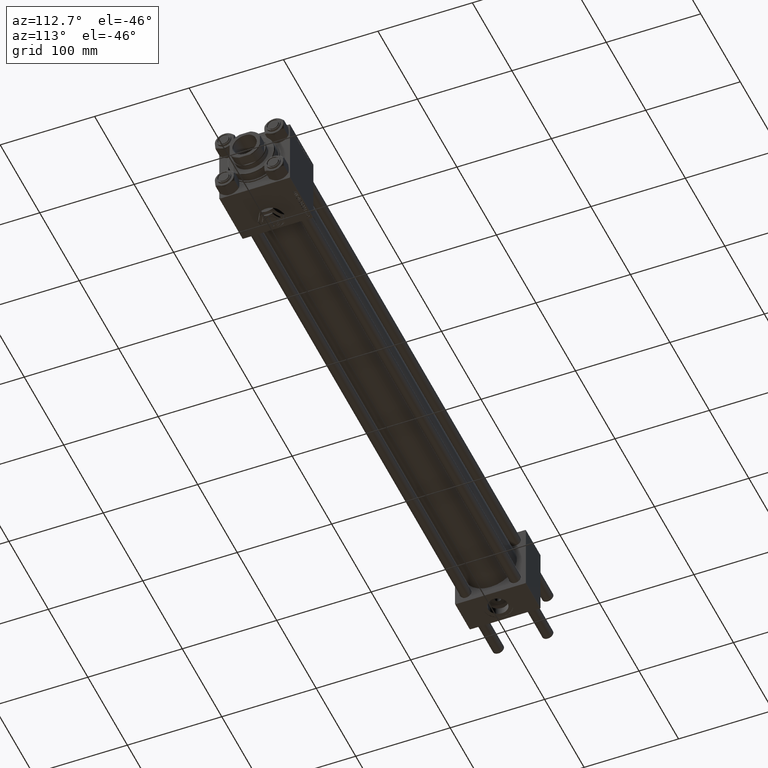
[diagram: clean part render]
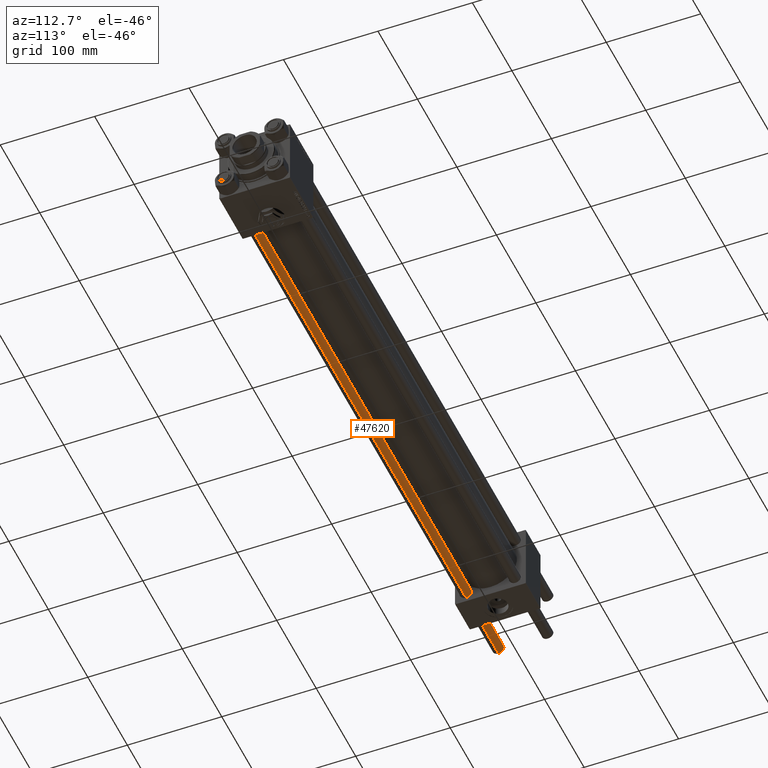
[diagram: same view with one face highlighted and labeled with its STEP entity id]
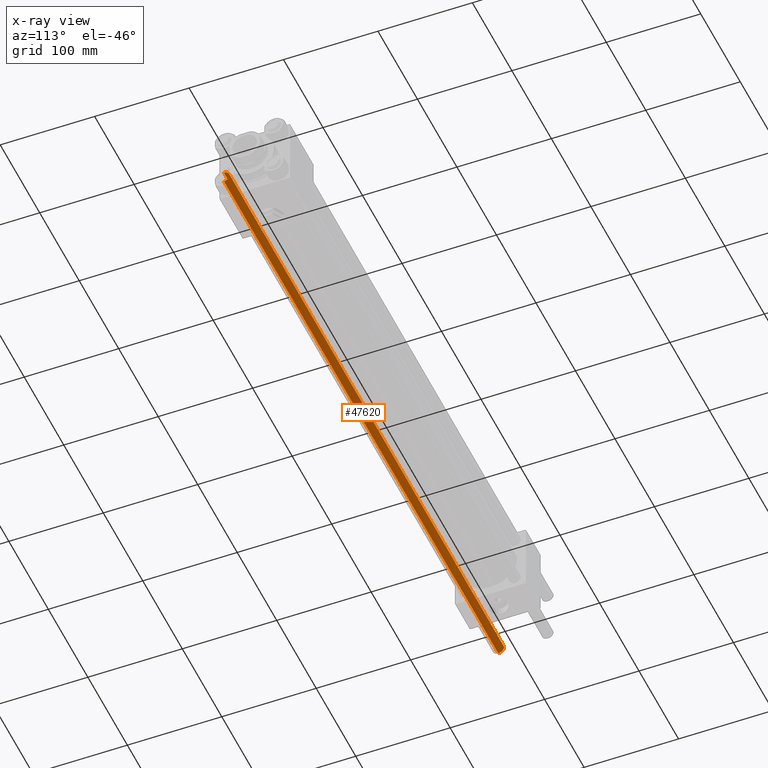
[diagram: x-ray of the same camera — body ghosted, the highlighted face saturated]
A machine part, auxiliary view. The second image highlights one B-rep face of the part: STEP entity #47620.
The next image is the same camera in x-ray: the body ghosted, the highlighted face saturated — about 0% of this face is hidden behind the body in this view.
In plain terms, the highlighted cylindrical surface (edge-blend (fillet) strip) has radius 6 mm, axis along (-1, 0, 0).
Its self-contained STEP definition (entity closure, byte-faithful):
#775 = CIRCLE ( 'NONE', #14104, 6.000000000000000888 ) ;
#5515 = VECTOR ( 'NONE', #46172, 1000.000000000000000 ) ;
#5815 = VERTEX_POINT ( 'NONE', #26380 ) ;
#9101 = CIRCLE ( 'NONE', #45038, 6.000000000000000888 ) ;
#9403 = FACE_OUTER_BOUND ( 'NONE', #12591, .T. ) ;
#10398 = CARTESIAN_POINT ( 'NONE',  ( -6.000000000000000888, 0.000000000000000000, 0.5000000000001669775 ) ) ;
#11100 = CARTESIAN_POINT ( 'NONE',  ( -6.000000000000000888, 0.000000000000000000, 696.0000000000000000 ) ) ;
#11347 = ORIENTED_EDGE ( 'NONE', *, *, #28331, .T. ) ;
#11668 = ORIENTED_EDGE ( 'NONE', *, *, #20585, .T. ) ;
#12591 = EDGE_LOOP ( 'NONE', ( #38704, #29180, #11668, #11347 ) ) ;
#13583 = CARTESIAN_POINT ( 'NONE',  ( 0.000000000000000000, 0.000000000000000000, 696.0000000000000000 ) ) ;
#13980 = DIRECTION ( 'NONE',  ( 1.000000000000000000, 0.000000000000000000, 0.000000000000000000 ) ) ;
#14104 = AXIS2_PLACEMENT_3D ( 'NONE', #33648, #46459, #38350 ) ;
#15994 = DIRECTION ( 'NONE',  ( -0.000000000000000000, -0.000000000000000000, -1.000000000000000000 ) ) ;
#16108 = AXIS2_PLACEMENT_3D ( 'NONE', #13583, #29559, #37664 ) ;
#17391 = VERTEX_POINT ( 'NONE', #37391 ) ;
#20585 = EDGE_CURVE ( 'NONE', #5815, #40368, #50632, .T. ) ;
#23718 = VECTOR ( 'NONE', #15994, 1000.000000000000000 ) ;
#24105 = LINE ( 'NONE', #47942, #23718 ) ;
#26380 = CARTESIAN_POINT ( 'NONE',  ( -6.000000000000000888, 0.000000000000000000, 695.5000000000000000 ) ) ;
#28331 = EDGE_CURVE ( 'NONE', #40368, #17391, #775, .T. ) ;
#29180 = ORIENTED_EDGE ( 'NONE', *, *, #35450, .T. ) ;
#29559 = DIRECTION ( 'NONE',  ( -0.000000000000000000, -0.000000000000000000, -1.000000000000000000 ) ) ;
#33482 = CYLINDRICAL_SURFACE ( 'NONE', #16108, 6.000000000000000888 ) ;
#33648 = CARTESIAN_POINT ( 'NONE',  ( 0.000000000000000000, 0.000000000000000000, 0.5000000000001669775 ) ) ;
#33738 = CARTESIAN_POINT ( 'NONE',  ( 6.000000000000000888, 7.347880794884120722E-16, 695.5000000000000000 ) ) ;
#35450 = EDGE_CURVE ( 'NONE', #42823, #5815, #9101, .T. ) ;
#37391 = CARTESIAN_POINT ( 'NONE',  ( 6.000000000000000888, 7.347880794884120722E-16, 0.5000000000001669775 ) ) ;
#37664 = DIRECTION ( 'NONE',  ( -1.000000000000000000, 0.000000000000000000, 0.000000000000000000 ) ) ;
#38350 = DIRECTION ( 'NONE',  ( 1.000000000000000000, 0.000000000000000000, 0.000000000000000000 ) ) ;
#38704 = ORIENTED_EDGE ( 'NONE', *, *, #51585, .F. ) ;
#40368 = VERTEX_POINT ( 'NONE', #10398 ) ;
#41462 = CARTESIAN_POINT ( 'NONE',  ( 0.000000000000000000, 0.000000000000000000, 695.5000000000000000 ) ) ;
#42823 = VERTEX_POINT ( 'NONE', #33738 ) ;
#45038 = AXIS2_PLACEMENT_3D ( 'NONE', #41462, #49853, #13980 ) ;
#46172 = DIRECTION ( 'NONE',  ( -0.000000000000000000, -0.000000000000000000, -1.000000000000000000 ) ) ;
#46459 = DIRECTION ( 'NONE',  ( -0.000000000000000000, -0.000000000000000000, 1.000000000000000000 ) ) ;
#47620 = ADVANCED_FACE ( 'NONE', ( #9403 ), #33482, .T. ) ;
#47942 = CARTESIAN_POINT ( 'NONE',  ( 6.000000000000000888, 7.347880794884120722E-16, 696.0000000000000000 ) ) ;
#49853 = DIRECTION ( 'NONE',  ( 0.000000000000000000, 0.000000000000000000, -1.000000000000000000 ) ) ;
#50632 = LINE ( 'NONE', #11100, #5515 ) ;
#51585 = EDGE_CURVE ( 'NONE', #42823, #17391, #24105, .T. ) ;